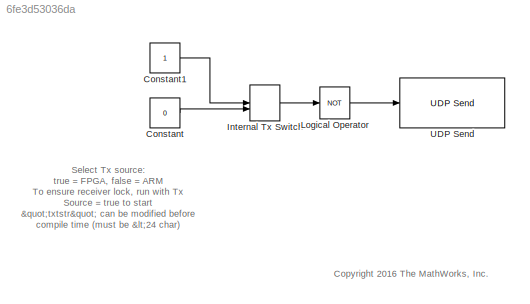
MODEL slx_6fe3d53036da
KIND model
CONFIG AbsTol = auto
CONFIG FixedStep = auto
CONFIG MaxStep = auto
CONFIG MinStep = auto
CONFIG RelTol = 1e-3
CONFIG SampleTimeConstraint = Unconstrained
CONFIG Solver = FixedStepAuto
CONFIG SolverMode = Auto
CONFIG SolverName = FixedStepAuto
CONFIG StartTime = 0.0
CONFIG StopTime = 1
BLOCK [Constant] Constant
  OutDataTypeStr = boolean
  SampleTime = -1
  Value = 0
BLOCK [Constant] Constant1
  OutDataTypeStr = boolean
  SampleTime = 1
BLOCK [ManualSwitch] Internal Tx Switch
  CurrentSetting = 0
BLOCK [Logic] Logical Operator
  AllPortsSameDT = off
  Operator = NOT
  OutDataTypeStr = boolean
  Ports = [1, 1]
BLOCK [Reference] UDP Send  REF=dspnetwork/UDP Send
  Ports = [1]
  SourceBlock = dspnetwork/UDP Send
  SourceType = UDP Send
ANNOTATION (root): Select Tx source: true = FPGA, false = ARM To ensure receiver lock, run with Tx Source = true to start "txtstr" can be modified before compile time (must be <24 char)
ANNOTATION (root): <copyright redacted>
LINE Constant1:1 -> Internal Tx Switch:1
LINE Constant:1 -> Internal Tx Switch:2
LINE Internal Tx Switch:1 -> Logical Operator:1
LINE Logical Operator:1 -> UDP Send:1
